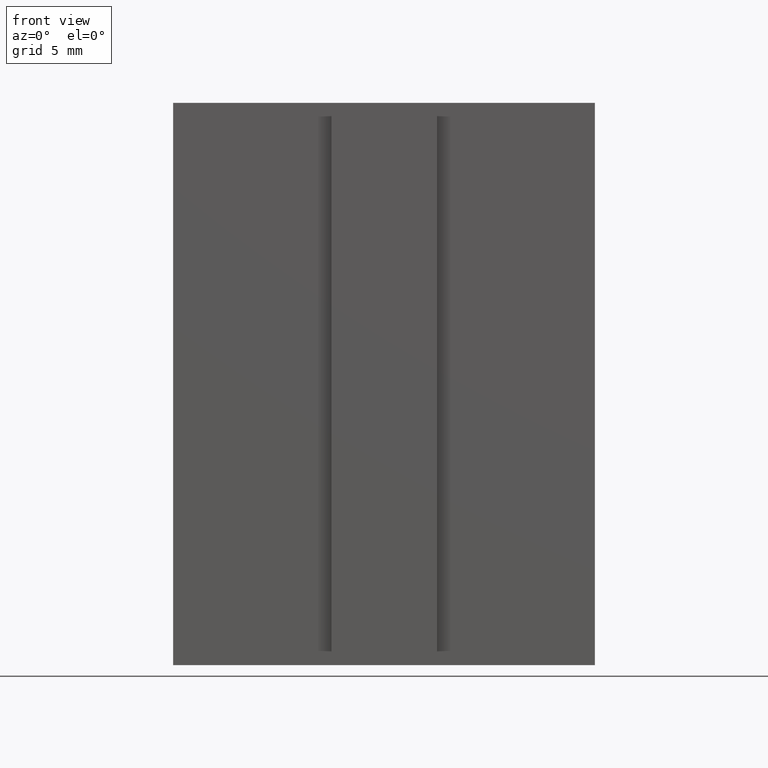
[diagram: clean part render]
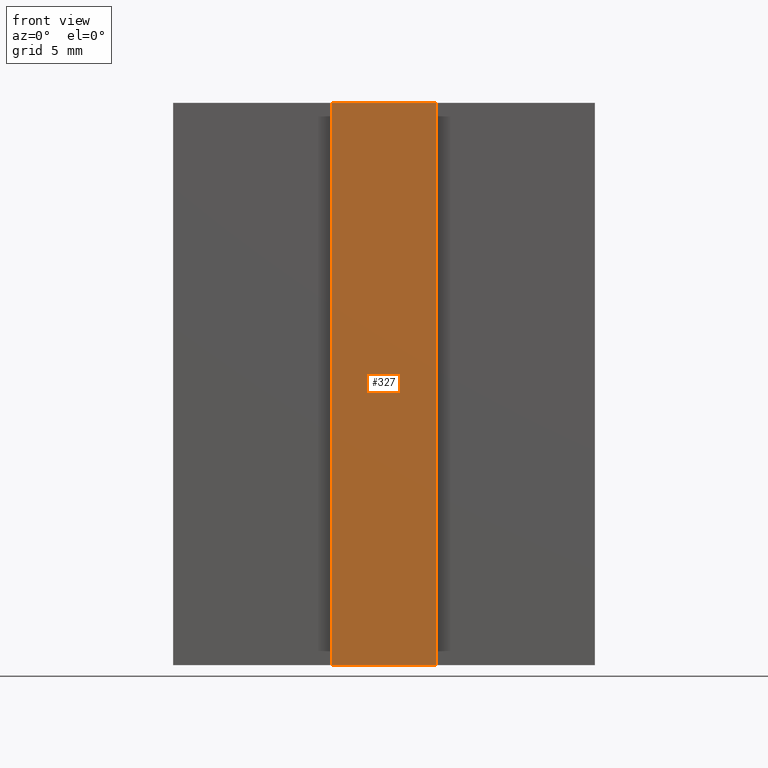
[diagram: same view with one face highlighted and labeled with its STEP entity id]
A machine part, front view. The second image highlights one B-rep face of the part: STEP entity #327.
In plain terms, the highlighted planar face has unit normal (0, -1, 0).
Its self-contained STEP definition (entity closure, byte-faithful):
#42=PLANE('',#424);
#58=FACE_OUTER_BOUND('',#78,.T.);
#78=EDGE_LOOP('',(#257,#258,#259,#260));
#101=LINE('',#578,#131);
#107=LINE('',#590,#137);
#109=LINE('',#594,#139);
#110=LINE('',#595,#140);
#131=VECTOR('',#476,10.);
#137=VECTOR('',#484,10.);
#139=VECTOR('',#488,10.);
#140=VECTOR('',#489,10.);
#174=VERTEX_POINT('',#575);
#175=VERTEX_POINT('',#577);
#180=VERTEX_POINT('',#588);
#181=VERTEX_POINT('',#593);
#203=EDGE_CURVE('',#175,#174,#101,.T.);
#209=EDGE_CURVE('',#180,#174,#107,.T.);
#211=EDGE_CURVE('',#180,#181,#109,.T.);
#212=EDGE_CURVE('',#181,#175,#110,.T.);
#257=ORIENTED_EDGE('',*,*,#211,.T.);
#258=ORIENTED_EDGE('',*,*,#212,.T.);
#259=ORIENTED_EDGE('',*,*,#203,.T.);
#260=ORIENTED_EDGE('',*,*,#209,.F.);
#327=ADVANCED_FACE('',(#58),#42,.T.);
#424=AXIS2_PLACEMENT_3D('',#592,#486,#487);
#476=DIRECTION('',(1.,0.,0.));
#484=DIRECTION('',(0.,0.,-1.));
#486=DIRECTION('center_axis',(0.,-1.,0.));
#487=DIRECTION('ref_axis',(0.,0.,-1.));
#488=DIRECTION('',(-1.,0.,0.));
#489=DIRECTION('',(0.,0.,-1.));
#575=CARTESIAN_POINT('',(3.,0.,-16.));
#577=CARTESIAN_POINT('',(-3.,0.,-16.));
#578=CARTESIAN_POINT('',(3.,0.,-16.));
#588=CARTESIAN_POINT('',(3.,0.,16.));
#590=CARTESIAN_POINT('',(3.,0.,0.));
#592=CARTESIAN_POINT('Origin',(3.,0.,0.));
#593=CARTESIAN_POINT('',(-3.,0.,16.));
#594=CARTESIAN_POINT('',(3.,0.,16.));
#595=CARTESIAN_POINT('',(-3.,0.,0.));